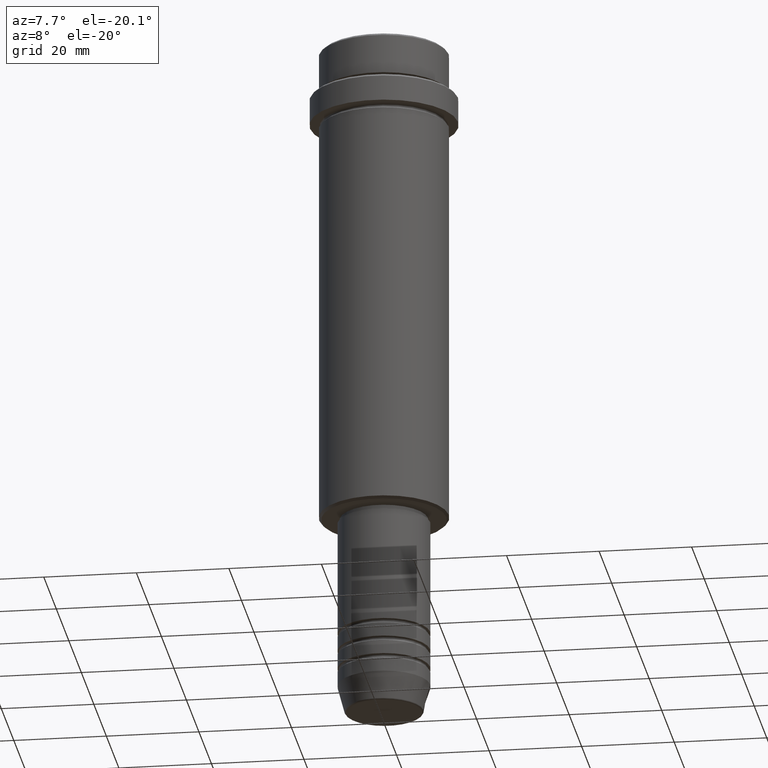
[diagram: clean part render]
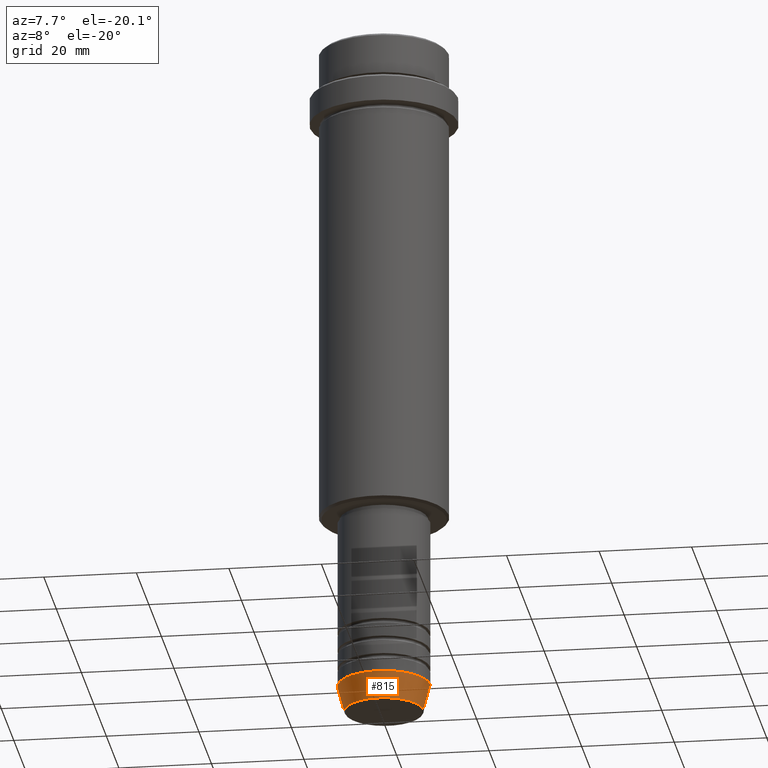
[diagram: same view with one face highlighted and labeled with its STEP entity id]
A machine part, auxiliary view. The second image highlights one B-rep face of the part: STEP entity #815.
In plain terms, the highlighted conical surface has half-angle 15 deg.
Its self-contained STEP definition (entity closure, byte-faithful):
#36 = CARTESIAN_POINT ( 'NONE',  ( 8.491604264568309191, 0.000000000000000000, -149.6294095225512990 ) ) ;
#116 = AXIS2_PLACEMENT_3D ( 'NONE', #383, #300, #273 ) ;
#118 = CARTESIAN_POINT ( 'NONE',  ( 10.00000000000000000, 0.000000000000000000, -144.0000000000000284 ) ) ;
#132 = CARTESIAN_POINT ( 'NONE',  ( 10.00000000000000000, 0.000000000000000000, -144.0000000000000284 ) ) ;
#141 = DIRECTION ( 'NONE',  ( 1.000000000000000000, 0.000000000000000000, 0.000000000000000000 ) ) ;
#169 = AXIS2_PLACEMENT_3D ( 'NONE', #1358, #832, #816 ) ;
#218 = EDGE_CURVE ( 'NONE', #823, #320, #1201, .T. ) ;
#229 = ORIENTED_EDGE ( 'NONE', *, *, #1277, .T. ) ;
#232 = DIRECTION ( 'NONE',  ( -0.2588190451025211281, 3.169619151431769872E-17, 0.9659258262890680902 ) ) ;
#273 = DIRECTION ( 'NONE',  ( 1.000000000000000000, 0.000000000000000000, 0.000000000000000000 ) ) ;
#280 = CARTESIAN_POINT ( 'NONE',  ( -10.00000000000000000, 1.224646799147353256E-15, -144.0000000000000284 ) ) ;
#281 = EDGE_CURVE ( 'NONE', #823, #539, #774, .T. ) ;
#300 = DIRECTION ( 'NONE',  ( -0.000000000000000000, -0.000000000000000000, 1.000000000000000000 ) ) ;
#320 = VERTEX_POINT ( 'NONE', #36 ) ;
#372 = CARTESIAN_POINT ( 'NONE',  ( 0.000000000000000000, 0.000000000000000000, -149.6294095225512990 ) ) ;
#383 = CARTESIAN_POINT ( 'NONE',  ( 0.000000000000000000, 0.000000000000000000, -144.0000000000000284 ) ) ;
#464 = VERTEX_POINT ( 'NONE', #118 ) ;
#539 = VERTEX_POINT ( 'NONE', #280 ) ;
#547 = DIRECTION ( 'NONE',  ( 0.2588190451025211281, 0.000000000000000000, 0.9659258262890680902 ) ) ;
#594 = ORIENTED_EDGE ( 'NONE', *, *, #1167, .F. ) ;
#646 = ORIENTED_EDGE ( 'NONE', *, *, #281, .F. ) ;
#650 = LINE ( 'NONE', #132, #1128 ) ;
#664 = EDGE_LOOP ( 'NONE', ( #646, #963, #229, #594 ) ) ;
#774 = LINE ( 'NONE', #1195, #1289 ) ;
#815 = ADVANCED_FACE ( 'NONE', ( #918 ), #1009, .T. ) ;
#816 = DIRECTION ( 'NONE',  ( 1.000000000000000000, 0.000000000000000000, 0.000000000000000000 ) ) ;
#823 = VERTEX_POINT ( 'NONE', #826 ) ;
#826 = CARTESIAN_POINT ( 'NONE',  ( -8.491604264568309191, 1.132284198685156387E-15, -149.6294095225512990 ) ) ;
#832 = DIRECTION ( 'NONE',  ( -0.000000000000000000, -0.000000000000000000, 1.000000000000000000 ) ) ;
#918 = FACE_OUTER_BOUND ( 'NONE', #664, .T. ) ;
#963 = ORIENTED_EDGE ( 'NONE', *, *, #218, .T. ) ;
#1009 = CONICAL_SURFACE ( 'NONE', #169, 10.00000000000000000, 0.2617993877991498519 ) ;
#1094 = CIRCLE ( 'NONE', #116, 10.00000000000000000 ) ;
#1109 = DIRECTION ( 'NONE',  ( -0.000000000000000000, -0.000000000000000000, 1.000000000000000000 ) ) ;
#1128 = VECTOR ( 'NONE', #547, 1000.000000000000114 ) ;
#1167 = EDGE_CURVE ( 'NONE', #539, #464, #1094, .T. ) ;
#1195 = CARTESIAN_POINT ( 'NONE',  ( -10.00000000000000000, 1.224646799147353256E-15, -144.0000000000000284 ) ) ;
#1201 = CIRCLE ( 'NONE', #1384, 8.491604264568309191 ) ;
#1277 = EDGE_CURVE ( 'NONE', #320, #464, #650, .T. ) ;
#1289 = VECTOR ( 'NONE', #232, 1000.000000000000114 ) ;
#1358 = CARTESIAN_POINT ( 'NONE',  ( 0.000000000000000000, 0.000000000000000000, -144.0000000000000284 ) ) ;
#1384 = AXIS2_PLACEMENT_3D ( 'NONE', #372, #1109, #141 ) ;